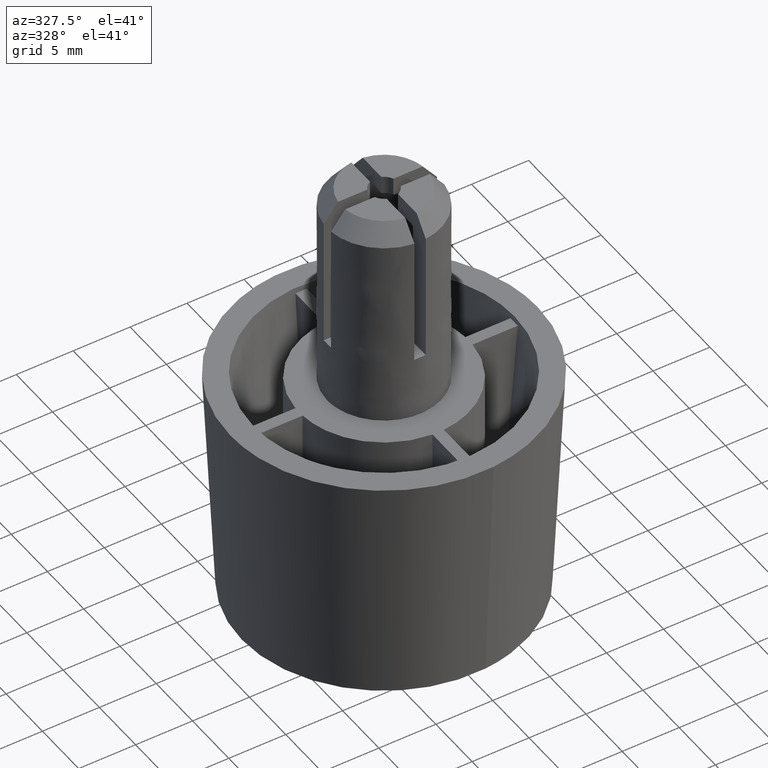
[diagram: clean part render]
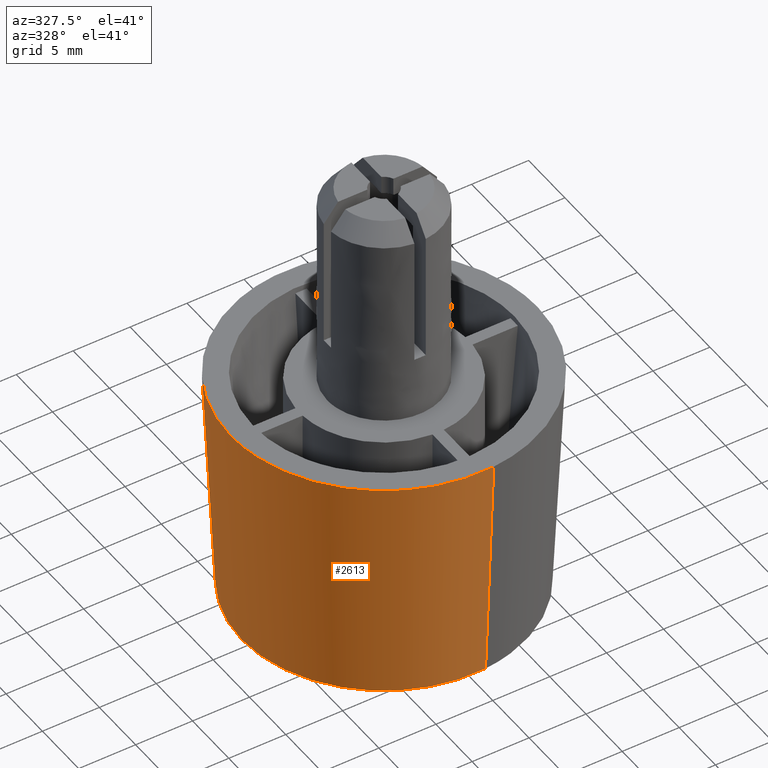
[diagram: same view with one face highlighted and labeled with its STEP entity id]
A machine part, auxiliary view. The second image highlights one B-rep face of the part: STEP entity #2613.
In plain terms, the highlighted face is a freeform B-spline surface patch.
Its self-contained STEP definition (entity closure, byte-faithful):
#2515=CARTESIAN_POINT('',(-0.978777219204874,12.436543738320770,-21.012499999999999));
#2516=CARTESIAN_POINT('',(-13.415320957525648,11.457766519115900,-21.012499999999999));
#2517=CARTESIAN_POINT('',(-12.436543738320770,-0.978777219204874,-21.012499999999999));
#2518=CARTESIAN_POINT('',(-11.457766519115900,-13.415320957525648,-21.012499999999999));
#2519=CARTESIAN_POINT('',(0.978777219204874,-12.436543738320770,-21.012499999999999));
#2520=CARTESIAN_POINT('',(-1.061208306653941,13.483930012074129,0.525312500000002));
#2521=CARTESIAN_POINT('',(-14.545138318728073,12.422721705420193,0.525312500000002));
#2522=CARTESIAN_POINT('',(-13.483930012074129,-1.061208306653941,0.525312500000002));
#2523=CARTESIAN_POINT('',(-12.422721705420193,-14.545138318728073,0.525312500000002));
#2524=CARTESIAN_POINT('',(1.061208306653941,-13.483930012074129,0.525312500000002));
#2532=(BOUNDED_SURFACE()B_SPLINE_SURFACE(2,1,((#2515,#2520),(#2516,#2521),(#2517,#2522),(#2518,#2523),(#2519,#2524)),.UNSPECIFIED.,.F.,.F.,.U.)B_SPLINE_SURFACE_WITH_KNOTS((3,2,3),(2,2),(0.0,22.409989258290370,44.819978516580733),(0.0,21.563422274207340),.UNSPECIFIED.)GEOMETRIC_REPRESENTATION_ITEM()RATIONAL_B_SPLINE_SURFACE(((1.0,1.0),(0.707106781186548,0.707106781186548),(1.0,1.0),(0.707106781186548,0.707106781186548),(1.0,1.0)))REPRESENTATION_ITEM('')SURFACE());
#2533=CARTESIAN_POINT('',(-12.500000000000000,0.0,-20.500000000000000));
#2534=VERTEX_POINT('',#2533);
#2535=CARTESIAN_POINT('',(-0.980728038662524,12.461467441941970,-20.500001400139681));
#2536=VERTEX_POINT('',#2535);
#2537=CARTESIAN_POINT('',(-12.500000000000000,0.0,-20.500000000000000));
#2538=CARTESIAN_POINT('',(-12.499999997320492,11.554891019817642,-20.500000700069840));
#2539=CARTESIAN_POINT('',(-0.980728038662524,12.461467441941963,-20.500001400139681));
#2547=(BOUNDED_CURVE()B_SPLINE_CURVE(2,(#2537,#2538,#2539),.UNSPECIFIED.,.F.,.U.)B_SPLINE_CURVE_WITH_KNOTS((3,3),(0.0,0.236331447173521),.UNSPECIFIED.)CURVE()GEOMETRIC_REPRESENTATION_ITEM()RATIONAL_B_SPLINE_CURVE((1.0,0.723120486922024,0.969723661991392))REPRESENTATION_ITEM(''));
#2548=EDGE_CURVE('',#2534,#2536,#2547,.T.);
#2549=ORIENTED_EDGE('',*,*,#2548,.F.);
#2550=CARTESIAN_POINT('',(0.980728038662524,-12.461467441941970,-20.500001400139681));
#2551=VERTEX_POINT('',#2550);
#2552=CARTESIAN_POINT('',(0.980728038662524,-12.461467441941961,-20.500001400139681));
#2553=CARTESIAN_POINT('',(0.491120981328558,-12.499999933143036,-20.500001374713815));
#2554=CARTESIAN_POINT('',(-5.156421E-009,-12.499999934480719,-20.500001347208290));
#2555=CARTESIAN_POINT('',(-12.500000002476911,-12.499999968527476,-20.500000647138449));
#2556=CARTESIAN_POINT('',(-12.500000000000000,0.0,-20.500000000000000));
#2564=(BOUNDED_CURVE()B_SPLINE_CURVE(2,(#2552,#2553,#2554,#2555,#2556),.UNSPECIFIED.,.F.,.U.)B_SPLINE_CURVE_WITH_KNOTS((3,2,3),(0.736331447173521,0.750000000000000,1.0),.UNSPECIFIED.)CURVE()GEOMETRIC_REPRESENTATION_ITEM()RATIONAL_B_SPLINE_CURVE((0.969723661991392,0.983986294264524,1.0,0.707106781186547,1.0))REPRESENTATION_ITEM(''));
#2565=EDGE_CURVE('',#2551,#2534,#2564,.T.);
#2566=ORIENTED_EDGE('',*,*,#2565,.F.);
#2567=CARTESIAN_POINT('',(1.059191600047635,-13.458384452697841,-0.000000818277128));
#2568=VERTEX_POINT('',#2567);
#2569=CARTESIAN_POINT('',(0.980728038662524,-12.461467441941970,-20.500001400139681));
#2570=CARTESIAN_POINT('',(1.059191600047635,-13.458384452697841,-0.000000818277128));
#2571=QUASI_UNIFORM_CURVE('',1,(#2569,#2570),.UNSPECIFIED.,.F.,.U.);
#2572=EDGE_CURVE('',#2551,#2568,#2571,.T.);
#2573=ORIENTED_EDGE('',*,*,#2572,.T.);
#2574=CARTESIAN_POINT('',(-13.500000000000000,0.0,0.0));
#2575=VERTEX_POINT('',#2574);
#2576=CARTESIAN_POINT('',(1.059191600047636,-13.458384452697844,-0.000000818277128));
#2577=CARTESIAN_POINT('',(0.530413335669481,-13.500000000000002,0.0));
#2578=CARTESIAN_POINT('',(0.0,-13.500000000000000,0.0));
#2579=CARTESIAN_POINT('',(-13.500000000000000,-13.500000000000000,0.0));
#2580=CARTESIAN_POINT('',(-13.500000000000000,0.0,0.0));
#2588=(BOUNDED_CURVE()B_SPLINE_CURVE(2,(#2576,#2577,#2578,#2579,#2580),.UNSPECIFIED.,.F.,.U.)B_SPLINE_CURVE_WITH_KNOTS((3,2,3),(0.736331379466254,0.750000000000000,1.0),.UNSPECIFIED.)CURVE()GEOMETRIC_REPRESENTATION_ITEM()RATIONAL_B_SPLINE_CURVE((0.969723520691347,0.983986214940526,1.0,0.707106781186548,1.0))REPRESENTATION_ITEM(''));
#2589=EDGE_CURVE('',#2568,#2575,#2588,.T.);
#2590=ORIENTED_EDGE('',*,*,#2589,.T.);
#2591=CARTESIAN_POINT('',(-1.059191600047637,13.458384452697841,-0.000000818277125));
#2592=VERTEX_POINT('',#2591);
#2593=CARTESIAN_POINT('',(-13.500000000000000,0.0,0.0));
#2594=CARTESIAN_POINT('',(-13.500000000000000,12.479277394011804,0.0));
#2595=CARTESIAN_POINT('',(-1.059191600047637,13.458384452697839,-0.000000818277125));
#2603=(BOUNDED_CURVE()B_SPLINE_CURVE(2,(#2593,#2594,#2595),.UNSPECIFIED.,.F.,.U.)B_SPLINE_CURVE_WITH_KNOTS((3,3),(0.0,0.236331379466254),.UNSPECIFIED.)CURVE()GEOMETRIC_REPRESENTATION_ITEM()RATIONAL_B_SPLINE_CURVE((1.0,0.723120566246022,0.969723520691347))REPRESENTATION_ITEM(''));
#2604=EDGE_CURVE('',#2575,#2592,#2603,.T.);
#2605=ORIENTED_EDGE('',*,*,#2604,.T.);
#2606=CARTESIAN_POINT('',(-0.980728038662524,12.461467441941970,-20.500001400139681));
#2607=CARTESIAN_POINT('',(-1.059191600047637,13.458384452697841,-0.000000818277125));
#2608=QUASI_UNIFORM_CURVE('',1,(#2606,#2607),.UNSPECIFIED.,.F.,.U.);
#2609=EDGE_CURVE('',#2536,#2592,#2608,.T.);
#2610=ORIENTED_EDGE('',*,*,#2609,.F.);
#2611=EDGE_LOOP('',(#2549,#2566,#2573,#2590,#2605,#2610));
#2612=FACE_OUTER_BOUND('',#2611,.T.);
#2613=ADVANCED_FACE('',(#2612),#2532,.T.);